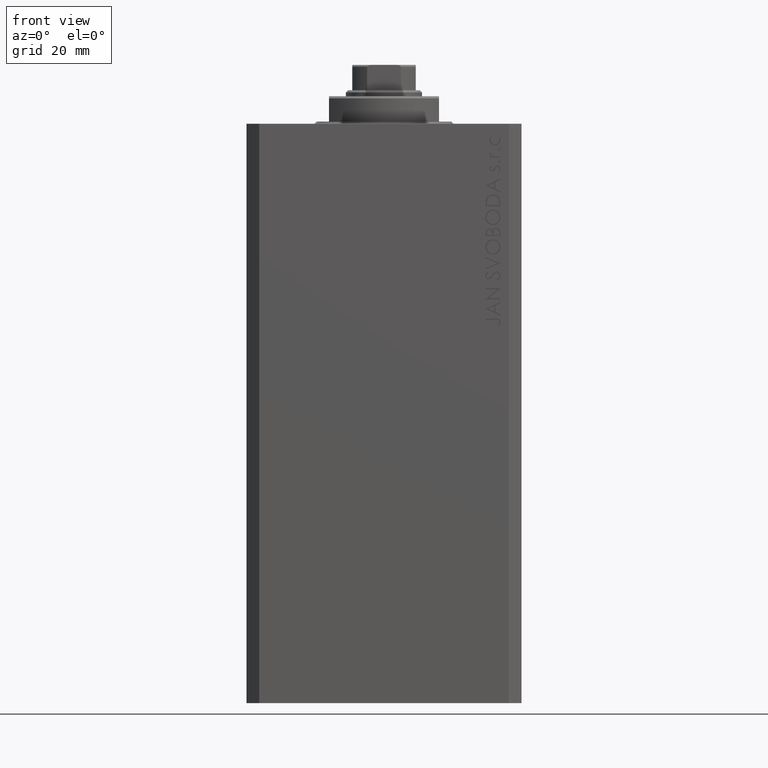
[diagram: clean part render]
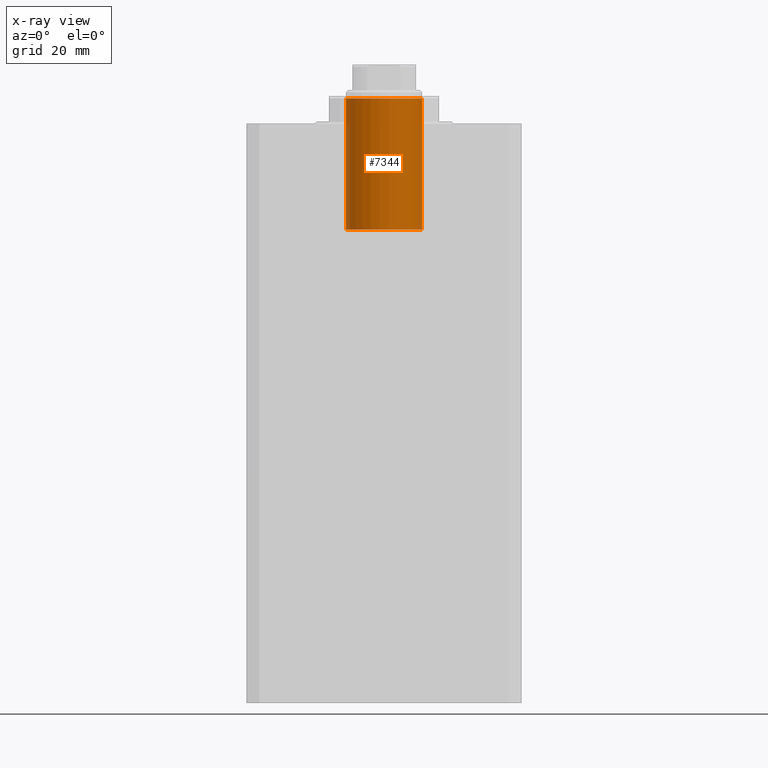
[diagram: x-ray — body ghosted, one internal face saturated and labeled with its STEP entity id]
A machine part, front view, then the same camera in x-ray: the body is ghosted and one INTERNAL B-rep face — a face not visible from any outside direction — is saturated and labeled: STEP entity #7344.
In plain terms, the highlighted cylindrical surface (partial cylindrical patch) has radius 9 mm, axis along (0, -0, 1).
Its self-contained STEP definition (entity closure, byte-faithful):
#1473 = EDGE_CURVE ( 'NONE', #22679, #3202, #34918, .T. ) ;
#1794 = DIRECTION ( 'NONE',  ( 0.000000000000000000, 0.000000000000000000, -1.000000000000000000 ) ) ;
#2150 = DIRECTION ( 'NONE',  ( -0.000000000000000000, -0.000000000000000000, -1.000000000000000000 ) ) ;
#3202 = VERTEX_POINT ( 'NONE', #28067 ) ;
#4637 = CYLINDRICAL_SURFACE ( 'NONE', #43638, 9.000000000000000000 ) ;
#6051 = CARTESIAN_POINT ( 'NONE',  ( 0.000000000000000000, 0.000000000000000000, -6.000000000000001776 ) ) ;
#6734 = ORIENTED_EDGE ( 'NONE', *, *, #7086, .F. ) ;
#7086 = EDGE_CURVE ( 'NONE', #42211, #7176, #15572, .T. ) ;
#7176 = VERTEX_POINT ( 'NONE', #24163 ) ;
#7344 = ADVANCED_FACE ( 'NONE', ( #18975 ), #4637, .F. ) ;
#8462 = DIRECTION ( 'NONE',  ( -1.000000000000000000, 0.000000000000000000, 0.000000000000000000 ) ) ;
#8635 = CARTESIAN_POINT ( 'NONE',  ( -9.000000000000000000, 0.000000000000000000, 25.10000000000000497 ) ) ;
#12214 = CARTESIAN_POINT ( 'NONE',  ( 9.000000000000000000, 1.102182119232617714E-15, 25.10000000000000497 ) ) ;
#14835 = CIRCLE ( 'NONE', #23988, 9.000000000000000000 ) ;
#14922 = CARTESIAN_POINT ( 'NONE',  ( 0.000000000000000000, 0.000000000000000000, 25.10000000000000497 ) ) ;
#15160 = EDGE_CURVE ( 'NONE', #3202, #7176, #14835, .T. ) ;
#15204 = ORIENTED_EDGE ( 'NONE', *, *, #1473, .T. ) ;
#15572 = LINE ( 'NONE', #8635, #34442 ) ;
#18975 = FACE_OUTER_BOUND ( 'NONE', #22263, .T. ) ;
#19082 = CIRCLE ( 'NONE', #29804, 9.000000000000000000 ) ;
#19862 = VECTOR ( 'NONE', #2150, 1000.000000000000000 ) ;
#22263 = EDGE_LOOP ( 'NONE', ( #42251, #15204, #27565, #6734 ) ) ;
#22679 = VERTEX_POINT ( 'NONE', #46353 ) ;
#22800 = DIRECTION ( 'NONE',  ( -0.000000000000000000, -0.000000000000000000, -1.000000000000000000 ) ) ;
#23988 = AXIS2_PLACEMENT_3D ( 'NONE', #6051, #39524, #35242 ) ;
#24163 = CARTESIAN_POINT ( 'NONE',  ( -9.000000000000000000, 0.000000000000000000, -6.000000000000001776 ) ) ;
#27565 = ORIENTED_EDGE ( 'NONE', *, *, #15160, .T. ) ;
#28067 = CARTESIAN_POINT ( 'NONE',  ( 9.000000000000000000, 1.102182119232617714E-15, -6.000000000000001776 ) ) ;
#28428 = CARTESIAN_POINT ( 'NONE',  ( -9.000000000000000000, 0.000000000000000000, 25.10000000000000497 ) ) ;
#29804 = AXIS2_PLACEMENT_3D ( 'NONE', #31211, #1794, #35039 ) ;
#31102 = DIRECTION ( 'NONE',  ( -0.000000000000000000, -0.000000000000000000, -1.000000000000000000 ) ) ;
#31211 = CARTESIAN_POINT ( 'NONE',  ( 0.000000000000000000, 0.000000000000000000, 25.10000000000000497 ) ) ;
#34442 = VECTOR ( 'NONE', #31102, 1000.000000000000000 ) ;
#34918 = LINE ( 'NONE', #12214, #19862 ) ;
#35039 = DIRECTION ( 'NONE',  ( -1.000000000000000000, 0.000000000000000000, 0.000000000000000000 ) ) ;
#35242 = DIRECTION ( 'NONE',  ( -1.000000000000000000, 0.000000000000000000, 0.000000000000000000 ) ) ;
#36650 = EDGE_CURVE ( 'NONE', #22679, #42211, #19082, .T. ) ;
#39524 = DIRECTION ( 'NONE',  ( 0.000000000000000000, 0.000000000000000000, -1.000000000000000000 ) ) ;
#42211 = VERTEX_POINT ( 'NONE', #28428 ) ;
#42251 = ORIENTED_EDGE ( 'NONE', *, *, #36650, .F. ) ;
#43638 = AXIS2_PLACEMENT_3D ( 'NONE', #14922, #22800, #8462 ) ;
#46353 = CARTESIAN_POINT ( 'NONE',  ( 9.000000000000000000, 1.102182119232617714E-15, 25.10000000000000497 ) ) ;